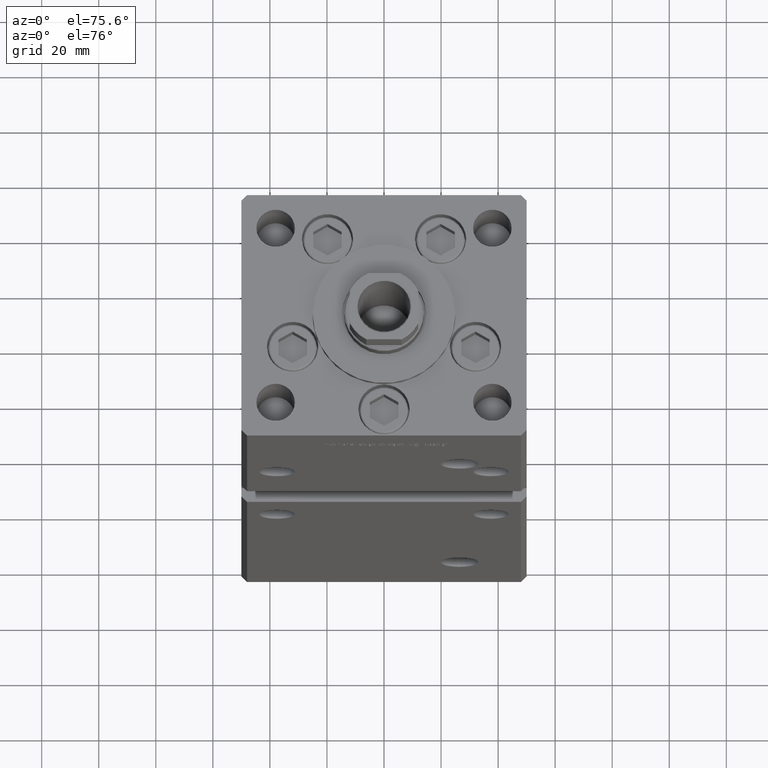
[diagram: clean part render]
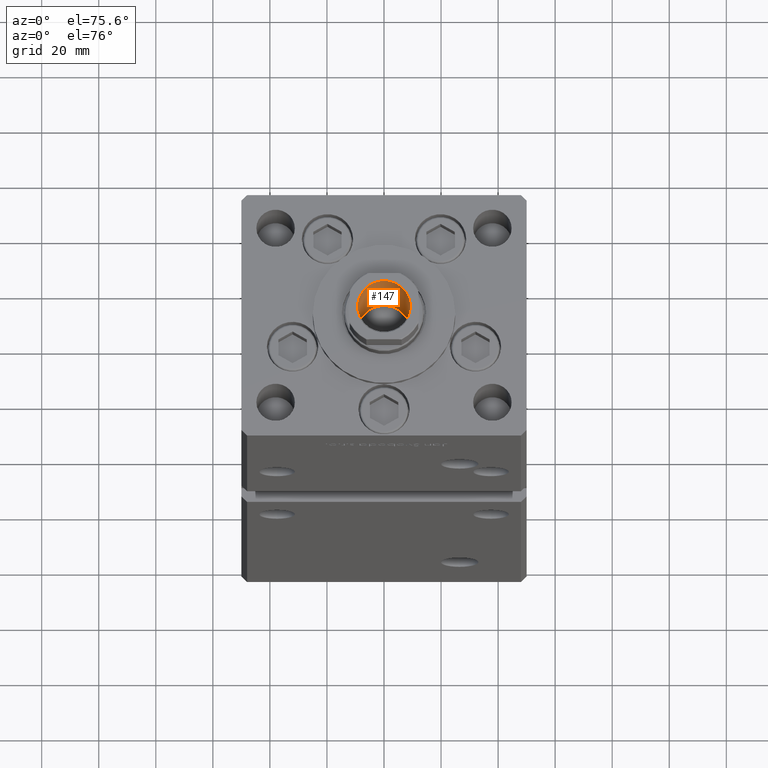
[diagram: same view with one face highlighted and labeled with its STEP entity id]
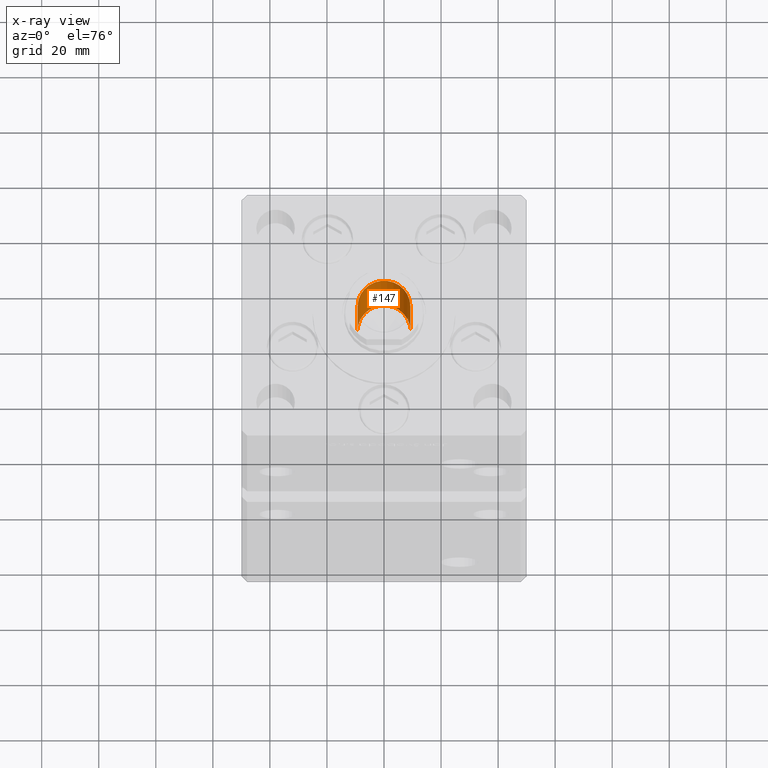
[diagram: x-ray of the same camera — body ghosted, the highlighted face saturated]
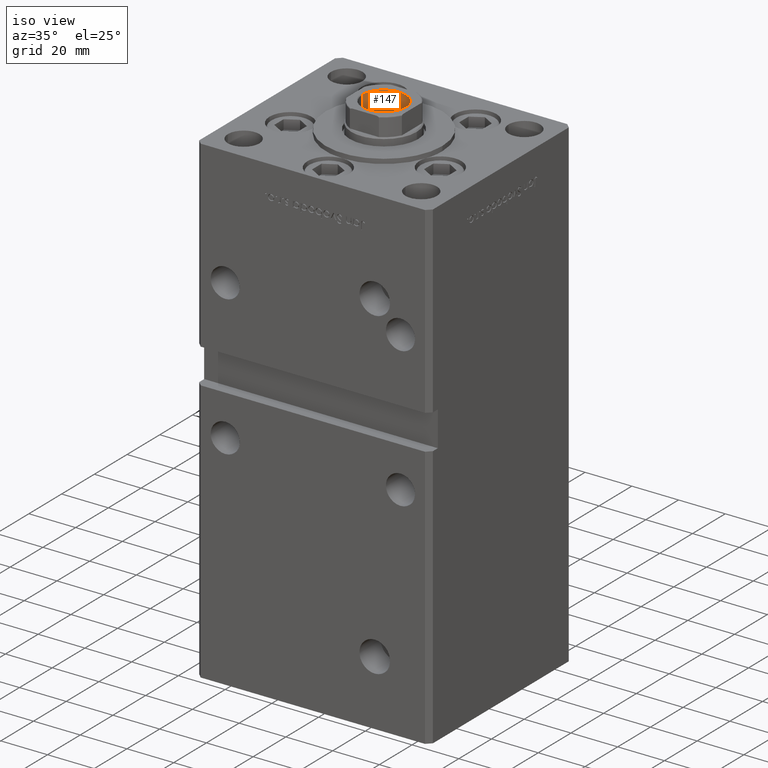
[diagram: same view with one face highlighted and labeled with its STEP entity id]
A machine part, auxiliary view. The second image highlights one B-rep face of the part: STEP entity #147.
The next image is the same camera in x-ray: the body ghosted, the highlighted face saturated — about 2% of this face is hidden behind the body in this view.
A second angle (iso view) of the same face is appended — the face is thin or edge-on in the first view.
In plain terms, the highlighted cylindrical surface (edge-blend (fillet) strip) has radius 9.25 mm, axis along (0, 0, 1).
Its self-contained STEP definition (entity closure, byte-faithful):
#147 = ADVANCED_FACE ( 'NONE', ( #4694 ), #30417, .F. ) ;
#1709 = DIRECTION ( 'NONE',  ( 1.000000000000000000, 0.000000000000000000, 0.000000000000000000 ) ) ;
#2780 = CARTESIAN_POINT ( 'NONE',  ( 0.000000000000000000, 0.000000000000000000, 150.2500000000000000 ) ) ;
#2835 = EDGE_CURVE ( 'NONE', #45102, #37770, #31615, .T. ) ;
#4694 = FACE_OUTER_BOUND ( 'NONE', #41858, .T. ) ;
#8971 = EDGE_CURVE ( 'NONE', #27281, #44396, #40219, .T. ) ;
#10142 = AXIS2_PLACEMENT_3D ( 'NONE', #22404, #37980, #1709 ) ;
#10509 = DIRECTION ( 'NONE',  ( 1.000000000000000000, 0.000000000000000000, 0.000000000000000000 ) ) ;
#10627 = LINE ( 'NONE', #23266, #38991 ) ;
#10825 = ORIENTED_EDGE ( 'NONE', *, *, #30230, .T. ) ;
#13122 = DIRECTION ( 'NONE',  ( -0.000000000000000000, -0.000000000000000000, 1.000000000000000000 ) ) ;
#14025 = DIRECTION ( 'NONE',  ( -0.000000000000000000, -0.000000000000000000, 1.000000000000000000 ) ) ;
#19446 = DIRECTION ( 'NONE',  ( -0.000000000000000000, -0.000000000000000000, 1.000000000000000000 ) ) ;
#21638 = CARTESIAN_POINT ( 'NONE',  ( 9.249999999999994671, 0.000000000000000000, 150.2500000000000000 ) ) ;
#22404 = CARTESIAN_POINT ( 'NONE',  ( 0.000000000000000000, 0.000000000000000000, 184.9499999999999602 ) ) ;
#23266 = CARTESIAN_POINT ( 'NONE',  ( 9.249999999999996447, 0.000000000000000000, 185.2500000000000000 ) ) ;
#26922 = CARTESIAN_POINT ( 'NONE',  ( 0.000000000000000000, 0.000000000000000000, 185.2500000000000000 ) ) ;
#27281 = VERTEX_POINT ( 'NONE', #21638 ) ;
#28775 = EDGE_CURVE ( 'NONE', #44396, #37770, #33541, .T. ) ;
#29547 = ORIENTED_EDGE ( 'NONE', *, *, #8971, .F. ) ;
#30230 = EDGE_CURVE ( 'NONE', #27281, #45102, #10627, .T. ) ;
#30417 = CYLINDRICAL_SURFACE ( 'NONE', #31505, 9.249999999999996447 ) ;
#30716 = CARTESIAN_POINT ( 'NONE',  ( 9.249999999999996447, 0.000000000000000000, 184.9499999999999602 ) ) ;
#30821 = AXIS2_PLACEMENT_3D ( 'NONE', #2780, #19446, #43360 ) ;
#31505 = AXIS2_PLACEMENT_3D ( 'NONE', #26922, #14025, #10509 ) ;
#31615 = CIRCLE ( 'NONE', #10142, 9.249999999999996447 ) ;
#33541 = LINE ( 'NONE', #49945, #49298 ) ;
#35915 = ORIENTED_EDGE ( 'NONE', *, *, #28775, .F. ) ;
#37770 = VERTEX_POINT ( 'NONE', #42084 ) ;
#37980 = DIRECTION ( 'NONE',  ( 0.000000000000000000, 0.000000000000000000, 1.000000000000000000 ) ) ;
#38991 = VECTOR ( 'NONE', #42404, 1000.000000000000000 ) ;
#40219 = CIRCLE ( 'NONE', #30821, 9.249999999999994671 ) ;
#41858 = EDGE_LOOP ( 'NONE', ( #35915, #29547, #10825, #45561 ) ) ;
#42084 = CARTESIAN_POINT ( 'NONE',  ( -9.249999999999996447, 1.132798289211301304E-15, 184.9499999999999602 ) ) ;
#42404 = DIRECTION ( 'NONE',  ( -0.000000000000000000, -0.000000000000000000, 1.000000000000000000 ) ) ;
#43360 = DIRECTION ( 'NONE',  ( 1.000000000000000000, 0.000000000000000000, 0.000000000000000000 ) ) ;
#44396 = VERTEX_POINT ( 'NONE', #48678 ) ;
#45102 = VERTEX_POINT ( 'NONE', #30716 ) ;
#45561 = ORIENTED_EDGE ( 'NONE', *, *, #2835, .T. ) ;
#48678 = CARTESIAN_POINT ( 'NONE',  ( -9.249999999999994671, 1.132798289211300909E-15, 150.2500000000000000 ) ) ;
#49298 = VECTOR ( 'NONE', #13122, 1000.000000000000000 ) ;
#49945 = CARTESIAN_POINT ( 'NONE',  ( -9.249999999999996447, 1.132798289211301304E-15, 185.2500000000000000 ) ) ;